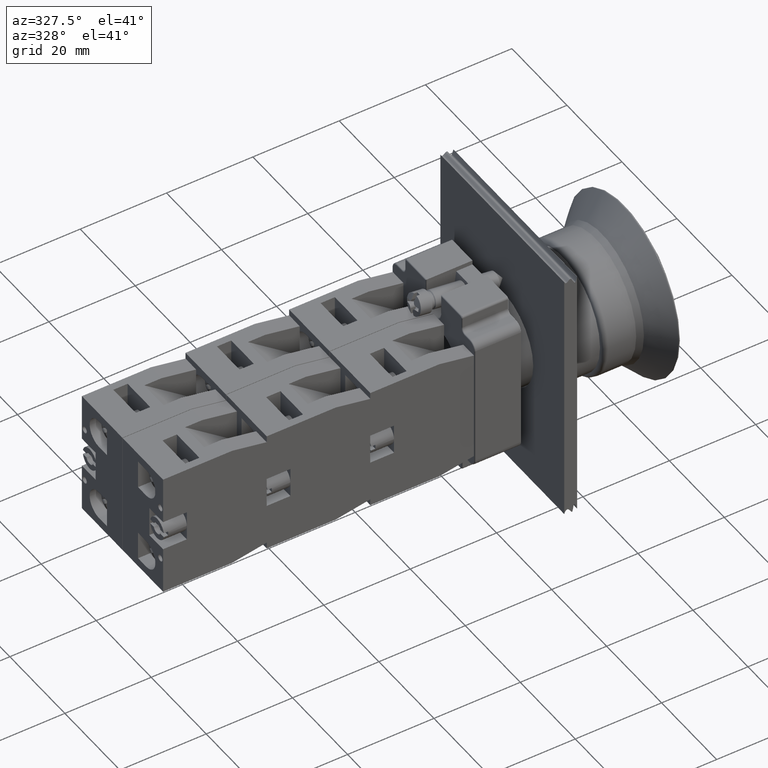
[diagram: clean part render]
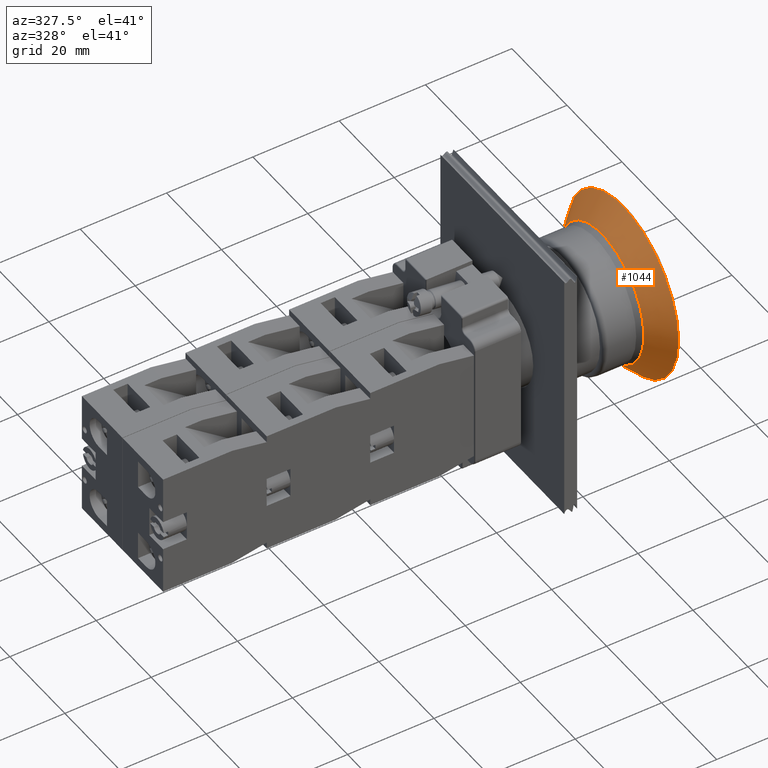
[diagram: same view with one face highlighted and labeled with its STEP entity id]
A machine part, auxiliary view. The second image highlights one B-rep face of the part: STEP entity #1044.
In plain terms, the highlighted conical surface has half-angle 45 deg.
Its self-contained STEP definition (entity closure, byte-faithful):
#1010=CARTESIAN_POINT('',(35.756085409183882,13.034915371231561,0.0));
#1011=VERTEX_POINT('',#1010);
#1012=CARTESIAN_POINT('',(35.756085409183882,-2.200871066395349,0.0));
#1013=DIRECTION('',(1.0,1.504367E-013,0.0));
#1014=DIRECTION('',(-1.504367E-013,1.0,0.0));
#1015=AXIS2_PLACEMENT_3D('',#1012,#1013,#1014);
#1016=CIRCLE('',#1015,15.235786437626910);
#1017=EDGE_CURVE('',#1011,#1011,#1016,.T.);
#1025=CARTESIAN_POINT('',(38.208902868489076,-2.200871066395350,0.0));
#1026=DIRECTION('',(1.0,-3.885962E-018,0.0));
#1027=DIRECTION('',(-1.504367E-013,1.0,0.0));
#1028=AXIS2_PLACEMENT_3D('',#1025,#1026,#1027);
#1029=CONICAL_SURFACE('',#1028,17.688603896932111,45.000000000000078);
#1030=CARTESIAN_POINT('',(40.661720327794271,17.940550289841962,0.0));
#1031=VERTEX_POINT('',#1030);
#1032=CARTESIAN_POINT('',(40.661720327794271,-2.200871066395350,0.0));
#1033=DIRECTION('',(1.0,1.504367E-013,0.0));
#1034=DIRECTION('',(-1.504367E-013,1.0,0.0));
#1035=AXIS2_PLACEMENT_3D('',#1032,#1033,#1034);
#1036=CIRCLE('',#1035,20.141421356237316);
#1037=EDGE_CURVE('',#1031,#1031,#1036,.T.);
#1038=ORIENTED_EDGE('',*,*,#1037,.F.);
#1039=EDGE_LOOP('',(#1038));
#1040=FACE_OUTER_BOUND('',#1039,.T.);
#1041=ORIENTED_EDGE('',*,*,#1017,.T.);
#1042=EDGE_LOOP('',(#1041));
#1043=FACE_BOUND('',#1042,.T.);
#1044=ADVANCED_FACE('',(#1040,#1043),#1029,.T.);